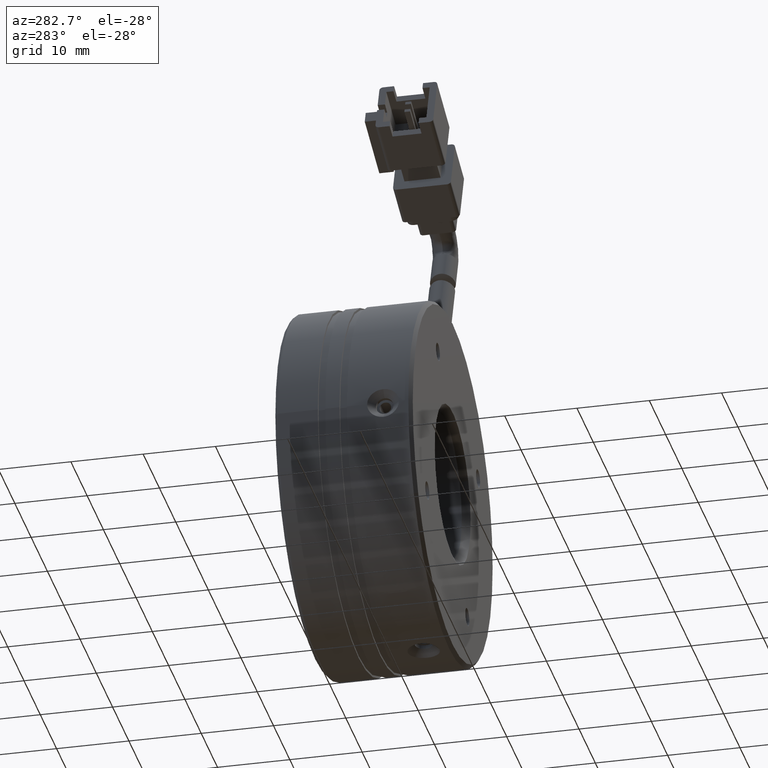
[diagram: clean part render]
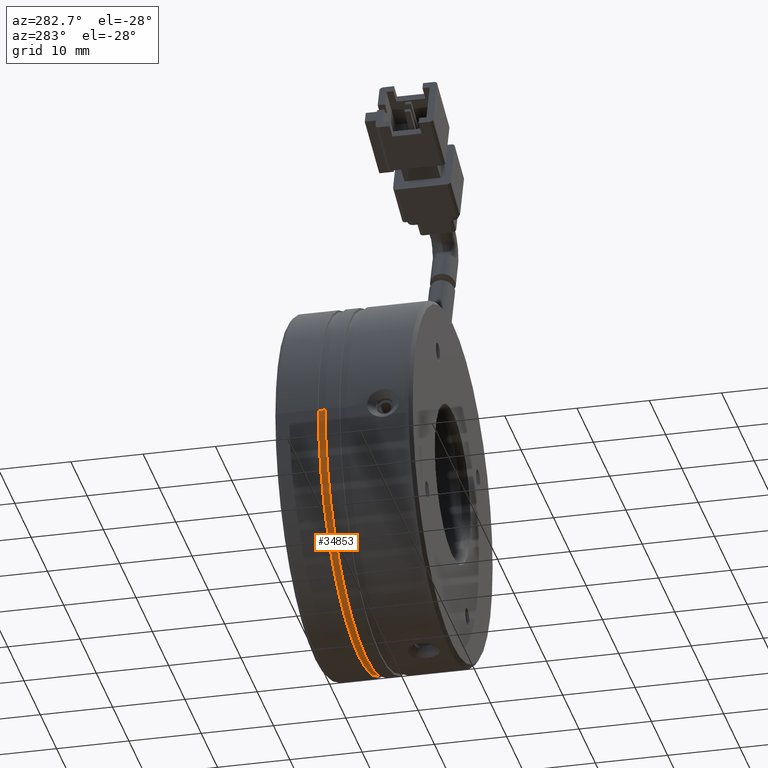
[diagram: same view with one face highlighted and labeled with its STEP entity id]
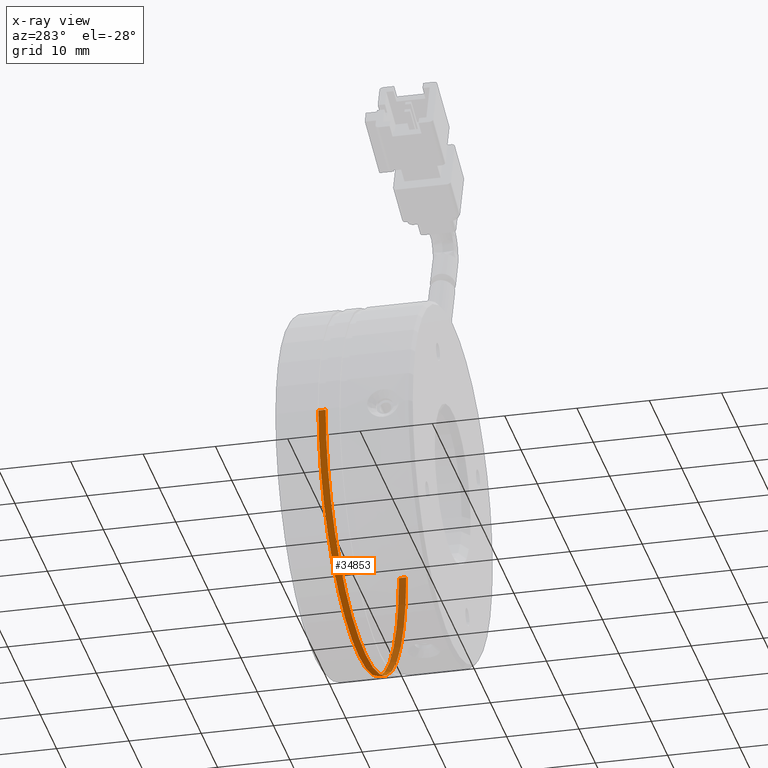
[diagram: x-ray of the same camera — body ghosted, the highlighted face saturated]
A machine part, auxiliary view. The second image highlights one B-rep face of the part: STEP entity #34853.
The next image is the same camera in x-ray: the body ghosted, the highlighted face saturated — about 25% of this face is hidden behind the body in this view.
In plain terms, the highlighted cylindrical surface (partial cylindrical patch) has radius 24.7 mm, axis along (-0, 1, -0).
Its self-contained STEP definition (entity closure, byte-faithful):
#1959 = DIRECTION ( 'NONE',  ( -1.000000000000000000, -1.404634393503487500E-016, 0.0000000000000000000 ) ) ;
#3850 = FACE_OUTER_BOUND ( 'NONE', #33044, .T. ) ;
#4055 = CARTESIAN_POINT ( 'NONE',  ( -118.4263522884882300, 15.12753120665741800, 0.0000000000000000000 ) ) ;
#4358 = DIRECTION ( 'NONE',  ( -1.000000000000000000, -1.404634393503487500E-016, 0.0000000000000000000 ) ) ;
#6504 = EDGE_CURVE ( 'NONE', #31188, #8730, #34453, .T. ) ;
#8730 = VERTEX_POINT ( 'NONE', #18499 ) ;
#8802 = VERTEX_POINT ( 'NONE', #4055 ) ;
#9534 = EDGE_CURVE ( 'NONE', #45957, #8802, #31651, .T. ) ;
#9753 = DIRECTION ( 'NONE',  ( -1.224646799147351700E-016, 1.000000000000000000, -0.0000000000000000000 ) ) ;
#10295 = DIRECTION ( 'NONE',  ( -1.224646799147351700E-016, 1.000000000000000000, -0.0000000000000000000 ) ) ;
#11745 = EDGE_CURVE ( 'NONE', #31188, #45957, #21980, .T. ) ;
#12680 = CARTESIAN_POINT ( 'NONE',  ( -69.02635228848822600, 24.01734612509121900, 3.024877593893963000E-015 ) ) ;
#13093 = ORIENTED_EDGE ( 'NONE', *, *, #9534, .T. ) ;
#13480 = VECTOR ( 'NONE', #9753, 1000.000000000000000 ) ;
#17242 = CIRCLE ( 'NONE', #27595, 24.69999999999999900 ) ;
#18499 = CARTESIAN_POINT ( 'NONE',  ( -69.02635228848821200, 15.12753120665742500, 3.024877593893963800E-015 ) ) ;
#18587 = CYLINDRICAL_SURFACE ( 'NONE', #19359, 24.69999999999999900 ) ;
#19359 = AXIS2_PLACEMENT_3D ( 'NONE', #43259, #39651, #4358 ) ;
#21980 = CIRCLE ( 'NONE', #31176, 24.69999999999999900 ) ;
#22773 = ORIENTED_EDGE ( 'NONE', *, *, #6504, .F. ) ;
#23238 = DIRECTION ( 'NONE',  ( 1.224646799147351700E-016, -1.000000000000000000, 0.0000000000000000000 ) ) ;
#27595 = AXIS2_PLACEMENT_3D ( 'NONE', #46771, #23238, #50695 ) ;
#30408 = VECTOR ( 'NONE', #49521, 1000.000000000000000 ) ;
#31176 = AXIS2_PLACEMENT_3D ( 'NONE', #37915, #10295, #1959 ) ;
#31188 = VERTEX_POINT ( 'NONE', #37331 ) ;
#31651 = LINE ( 'NONE', #35089, #30408 ) ;
#33044 = EDGE_LOOP ( 'NONE', ( #22773, #44651, #13093, #38340 ) ) ;
#34453 = LINE ( 'NONE', #12680, #13480 ) ;
#34853 = ADVANCED_FACE ( 'NONE', ( #3850 ), #18587, .T. ) ;
#35089 = CARTESIAN_POINT ( 'NONE',  ( -118.4263522884882300, 24.01734612509121200, 0.0000000000000000000 ) ) ;
#37331 = CARTESIAN_POINT ( 'NONE',  ( -69.02635228848821200, 14.12753120665742500, 3.024877593893963800E-015 ) ) ;
#37915 = CARTESIAN_POINT ( 'NONE',  ( -93.72635228848822900, 14.12753120665742100, 0.0000000000000000000 ) ) ;
#38340 = ORIENTED_EDGE ( 'NONE', *, *, #50668, .T. ) ;
#39651 = DIRECTION ( 'NONE',  ( -1.224646799147351700E-016, 1.000000000000000000, -0.0000000000000000000 ) ) ;
#43180 = CARTESIAN_POINT ( 'NONE',  ( -118.4263522884882300, 14.12753120665741800, 0.0000000000000000000 ) ) ;
#43259 = CARTESIAN_POINT ( 'NONE',  ( -93.72635228848822900, 24.01734612509121500, 0.0000000000000000000 ) ) ;
#44651 = ORIENTED_EDGE ( 'NONE', *, *, #11745, .T. ) ;
#45957 = VERTEX_POINT ( 'NONE', #43180 ) ;
#46771 = CARTESIAN_POINT ( 'NONE',  ( -93.72635228848822900, 15.12753120665742100, 0.0000000000000000000 ) ) ;
#49521 = DIRECTION ( 'NONE',  ( -1.224646799147351700E-016, 1.000000000000000000, -0.0000000000000000000 ) ) ;
#50668 = EDGE_CURVE ( 'NONE', #8802, #8730, #17242, .T. ) ;
#50695 = DIRECTION ( 'NONE',  ( -1.000000000000000000, -1.404634393503487500E-016, 0.0000000000000000000 ) ) ;